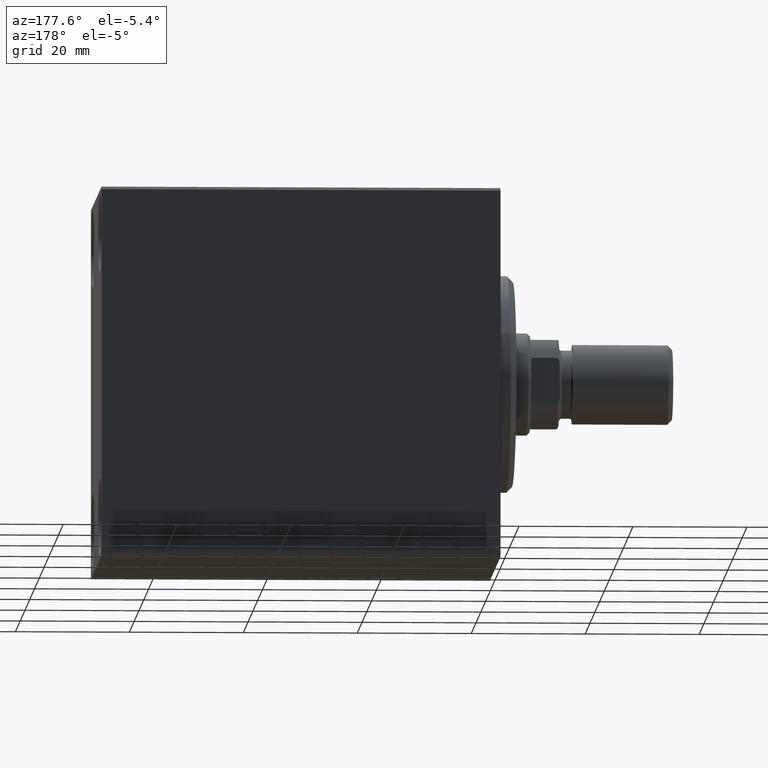
[diagram: clean part render]
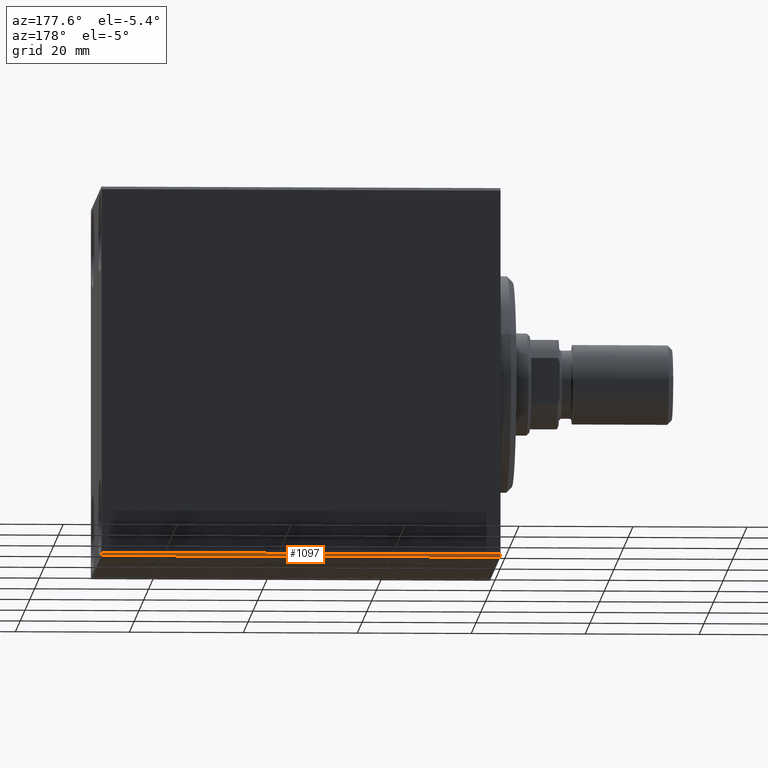
[diagram: same view with one face highlighted and labeled with its STEP entity id]
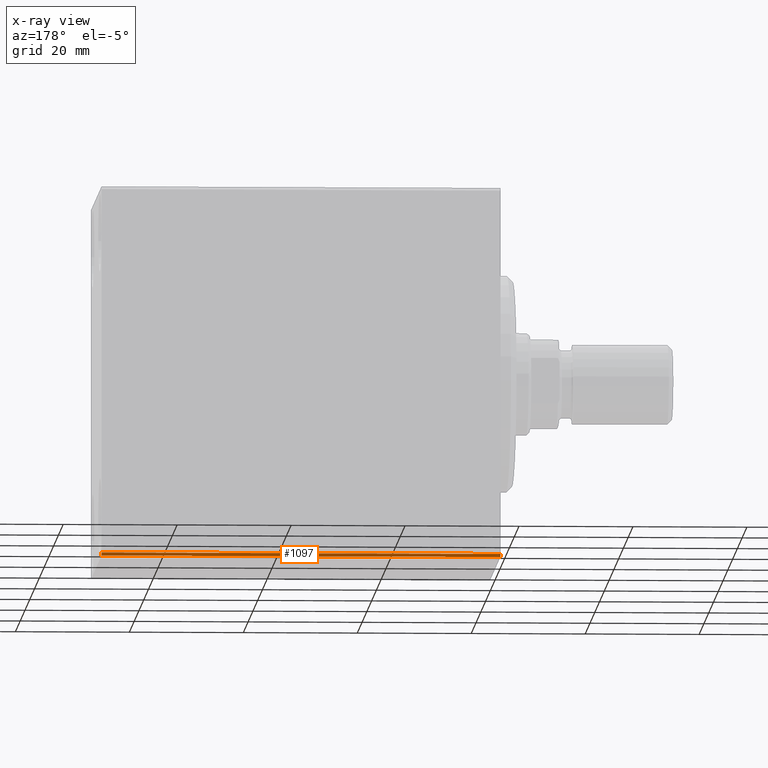
[diagram: x-ray of the same camera — body ghosted, the highlighted face saturated]
A machine part, auxiliary view. The second image highlights one B-rep face of the part: STEP entity #1097.
The next image is the same camera in x-ray: the body ghosted, the highlighted face saturated — about 0% of this face is hidden behind the body in this view.
In plain terms, the highlighted planar face has unit normal (0, -0.7071, 0.7071).
Its self-contained STEP definition (entity closure, byte-faithful):
#250 = VECTOR ( 'NONE', #35300, 1000.000000000000000 ) ;
#1097 = ADVANCED_FACE ( 'NONE', ( #1708 ), #24957, .F. ) ;
#1708 = FACE_OUTER_BOUND ( 'NONE', #15640, .T. ) ;
#2762 = CARTESIAN_POINT ( 'NONE',  ( 70.00000000000000000, 27.25000000000032685, -27.24999999999957012 ) ) ;
#3847 = VECTOR ( 'NONE', #30750, 1000.000000000000114 ) ;
#4301 = VECTOR ( 'NONE', #9015, 1000.000000000000114 ) ;
#6843 = CARTESIAN_POINT ( 'NONE',  ( 0.000000000000000000, 22.50000000000000000, -32.00000000000002132 ) ) ;
#9015 = DIRECTION ( 'NONE',  ( -0.000000000000000000, 0.7071067811865376918, 0.7071067811865573427 ) ) ;
#9356 = VERTEX_POINT ( 'NONE', #11215 ) ;
#9983 = CARTESIAN_POINT ( 'NONE',  ( 70.00000000000000000, 22.50000000000000000, -32.00000000000002132 ) ) ;
#10198 = LINE ( 'NONE', #6843, #3847 ) ;
#11215 = CARTESIAN_POINT ( 'NONE',  ( 70.00000000000000000, 22.00000000000001421, -32.50000000000000711 ) ) ;
#12813 = LINE ( 'NONE', #2762, #4301 ) ;
#14251 = AXIS2_PLACEMENT_3D ( 'NONE', #15335, #38566, #42585 ) ;
#15193 = CARTESIAN_POINT ( 'NONE',  ( 70.00000000000000000, 22.00000000000002487, -32.50000000000000711 ) ) ;
#15335 = CARTESIAN_POINT ( 'NONE',  ( 70.00000000000000000, 22.50000000000000000, -32.00000000000002132 ) ) ;
#15640 = EDGE_LOOP ( 'NONE', ( #23880, #26915, #31699, #15842 ) ) ;
#15842 = ORIENTED_EDGE ( 'NONE', *, *, #42185, .F. ) ;
#16042 = LINE ( 'NONE', #9983, #17248 ) ;
#16346 = CARTESIAN_POINT ( 'NONE',  ( 0.000000000000000000, 22.00000000000001421, -32.50000000000000711 ) ) ;
#17248 = VECTOR ( 'NONE', #26306, 1000.000000000000000 ) ;
#17797 = EDGE_CURVE ( 'NONE', #36603, #9356, #38641, .T. ) ;
#22834 = EDGE_CURVE ( 'NONE', #25029, #36603, #10198, .T. ) ;
#23880 = ORIENTED_EDGE ( 'NONE', *, *, #41863, .F. ) ;
#24379 = VERTEX_POINT ( 'NONE', #25754 ) ;
#24957 = PLANE ( 'NONE',  #14251 ) ;
#25029 = VERTEX_POINT ( 'NONE', #33829 ) ;
#25754 = CARTESIAN_POINT ( 'NONE',  ( 70.00000000000000000, 22.50000000000000000, -32.00000000000002132 ) ) ;
#26306 = DIRECTION ( 'NONE',  ( -1.000000000000000000, 0.000000000000000000, 0.000000000000000000 ) ) ;
#26915 = ORIENTED_EDGE ( 'NONE', *, *, #17797, .F. ) ;
#30750 = DIRECTION ( 'NONE',  ( 0.000000000000000000, -0.7071067811865376918, -0.7071067811865573427 ) ) ;
#31699 = ORIENTED_EDGE ( 'NONE', *, *, #22834, .F. ) ;
#33829 = CARTESIAN_POINT ( 'NONE',  ( 0.000000000000000000, 22.50000000000000000, -32.00000000000002132 ) ) ;
#35300 = DIRECTION ( 'NONE',  ( 1.000000000000000000, 0.000000000000000000, 0.000000000000000000 ) ) ;
#36603 = VERTEX_POINT ( 'NONE', #16346 ) ;
#38566 = DIRECTION ( 'NONE',  ( 0.000000000000000000, -0.7071067811865573427, 0.7071067811865376918 ) ) ;
#38641 = LINE ( 'NONE', #15193, #250 ) ;
#41863 = EDGE_CURVE ( 'NONE', #9356, #24379, #12813, .T. ) ;
#42185 = EDGE_CURVE ( 'NONE', #24379, #25029, #16042, .T. ) ;
#42585 = DIRECTION ( 'NONE',  ( -1.000000000000000000, 0.000000000000000000, 0.000000000000000000 ) ) ;